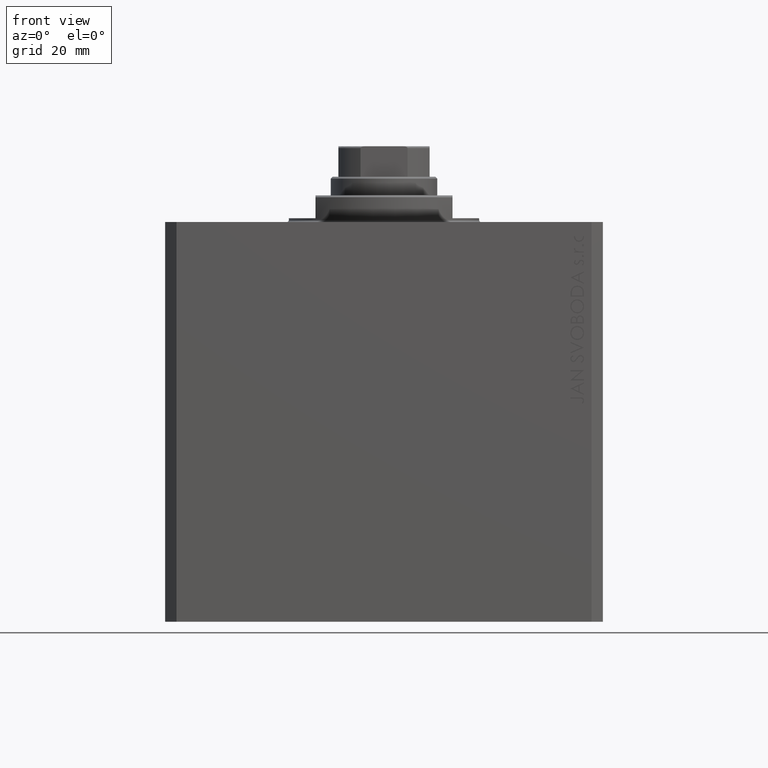
[diagram: clean part render]
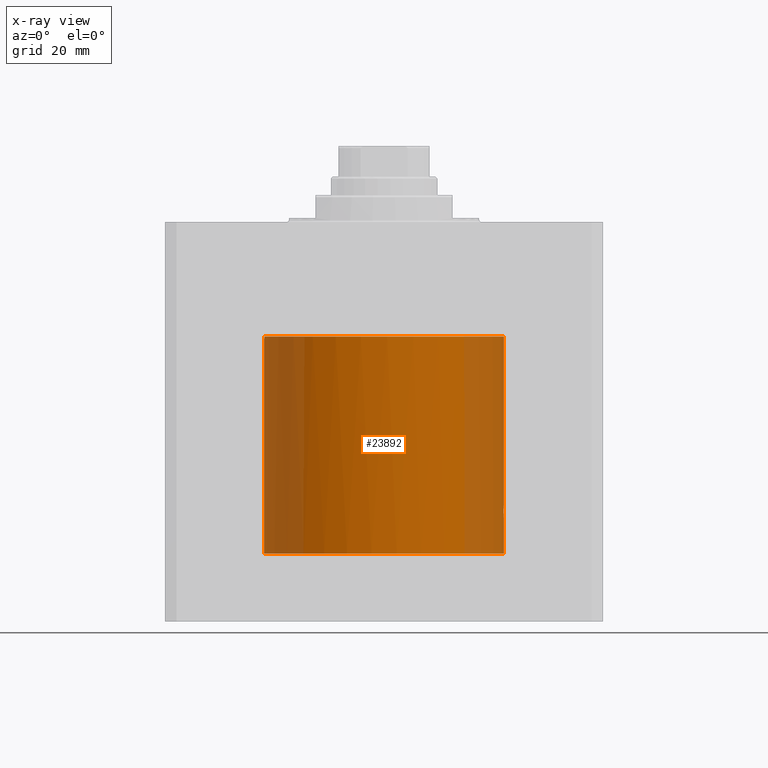
[diagram: x-ray — body ghosted, one internal face saturated and labeled with its STEP entity id]
A machine part, front view, then the same camera in x-ray: the body is ghosted and one INTERNAL B-rep face — a face not visible from any outside direction — is saturated and labeled: STEP entity #23892.
In plain terms, the highlighted cylindrical surface (partial cylindrical patch) has radius 31.5 mm, axis along (0, 0, 1).
Its self-contained STEP definition (entity closure, byte-faithful):
#1382 = CARTESIAN_POINT ( 'NONE',  ( 31.50000000000000000, 0.000000000000000000, -87.10000000000000853 ) ) ;
#3136 = CARTESIAN_POINT ( 'NONE',  ( -31.45568311132346295, -1.670329308848988559, -30.10000000000000142 ) ) ;
#3246 = CARTESIAN_POINT ( 'NONE',  ( 31.48773138987390752, -0.8872616597623499413, -77.79713993556131868 ) ) ;
#3460 = CARTESIAN_POINT ( 'NONE',  ( 31.47236300924845764, -1.322453193766294888, -77.50602960223193350 ) ) ;
#3842 = VERTEX_POINT ( 'NONE', #36670 ) ;
#4163 = VERTEX_POINT ( 'NONE', #22631 ) ;
#5920 = CARTESIAN_POINT ( 'NONE',  ( 31.50000000000000000, 0.000000000000000000, -87.10000000000000853 ) ) ;
#5970 = CARTESIAN_POINT ( 'NONE',  ( 31.46407444263389053, -1.506829553733667337, -77.32154164084835202 ) ) ;
#6106 = CARTESIAN_POINT ( 'NONE',  ( -31.50000000000000000, 3.857637417314161900E-15, -87.10000000000000853 ) ) ;
#6401 = CARTESIAN_POINT ( 'NONE',  ( 31.45220500162105282, -1.736105959509581131, -77.00148586720197841 ) ) ;
#7422 = DIRECTION ( 'NONE',  ( 1.000000000000000000, 0.000000000000000000, 0.000000000000000000 ) ) ;
#7527 = CARTESIAN_POINT ( 'NONE',  ( -31.50000000000000000, 3.857542963677526976E-15, -30.99999999999999645 ) ) ;
#8191 = CARTESIAN_POINT ( 'NONE',  ( -31.49867665059925059, -0.3296835877876423959, -30.97945265407803817 ) ) ;
#8662 = CIRCLE ( 'NONE', #24508, 31.50000000000000000 ) ;
#8716 = CARTESIAN_POINT ( 'NONE',  ( 31.47654718428505305, -1.229266569362845063, -74.40094912261049842 ) ) ;
#9359 = CARTESIAN_POINT ( 'NONE',  ( 31.43644381923633446, -1.999999999999602318, -76.13191476749157971 ) ) ;
#10392 = DIRECTION ( 'NONE',  ( -0.000000000000000000, -0.000000000000000000, 1.000000000000000000 ) ) ;
#10689 = CARTESIAN_POINT ( 'NONE',  ( 31.50000000000000000, 2.115822464172388752E-15, -78.00000000000000000 ) ) ;
#10899 = CARTESIAN_POINT ( 'NONE',  ( -31.47627458383467314, -1.228422599595581310, -30.58690868017701447 ) ) ;
#11136 = CARTESIAN_POINT ( 'NONE',  ( -31.45568311132346295, -1.670329308848988559, -30.10000000000000142 ) ) ;
#11431 = AXIS2_PLACEMENT_3D ( 'NONE', #13647, #38473, #35324 ) ;
#11503 = EDGE_CURVE ( 'NONE', #13937, #13096, #32296, .T. ) ;
#11650 = CARTESIAN_POINT ( 'NONE',  ( 31.45222028857342522, -1.735837506356491033, -74.99801201165938380 ) ) ;
#11775 = B_SPLINE_CURVE_WITH_KNOTS ( 'NONE', 3,
 ( #7527, #17673, #8191, #38881, #32126, #28078, #10899, #18346, #39101, #11136 ),
 .UNSPECIFIED., .F., .F.,
 ( 4, 2, 2, 2, 4 ),
 ( 0.001968471068080991215, 0.002460037929978817033, 0.002951604791876643284, 0.003443171653774469102, 0.003934738515672294920 ),
 .UNSPECIFIED. ) ;
#12099 = CARTESIAN_POINT ( 'NONE',  ( 31.44044773446764296, -1.936206353227569288, -75.48220621295804733 ) ) ;
#12318 = CARTESIAN_POINT ( 'NONE',  ( 31.49655533253666206, -0.5244229631002979009, -74.05246119243457770 ) ) ;
#13096 = VERTEX_POINT ( 'NONE', #10689 ) ;
#13391 = CARTESIAN_POINT ( 'NONE',  ( 31.50000000000000000, 2.115822464172388752E-15, -78.00000000000000000 ) ) ;
#13647 = CARTESIAN_POINT ( 'NONE',  ( 0.000000000000000000, 0.000000000000000000, -87.10000000000000853 ) ) ;
#13937 = VERTEX_POINT ( 'NONE', #5920 ) ;
#14160 = EDGE_CURVE ( 'NONE', #15183, #4163, #27567, .T. ) ;
#15183 = VERTEX_POINT ( 'NONE', #40824 ) ;
#15272 = CARTESIAN_POINT ( 'NONE',  ( 31.43644381923633446, -1.999999999999602318, -75.86794965735502672 ) ) ;
#15497 = CARTESIAN_POINT ( 'NONE',  ( 31.44282756203102380, -1.897662384614844600, -75.35498306075693620 ) ) ;
#15793 = CIRCLE ( 'NONE', #34490, 31.50000000000000000 ) ;
#16352 = CARTESIAN_POINT ( 'NONE',  ( 31.49999999999999289, -0.2641644753935982193, -77.99999999999994316 ) ) ;
#16823 = EDGE_LOOP ( 'NONE', ( #39652, #21278, #21855, #35050, #21959, #40892, #40364, #37367 ) ) ;
#17477 = CYLINDRICAL_SURFACE ( 'NONE', #11431, 31.50000000000000000 ) ;
#17673 = CARTESIAN_POINT ( 'NONE',  ( -31.49999999999999289, -0.1655884372801706417, -30.99999999999998579 ) ) ;
#18346 = CARTESIAN_POINT ( 'NONE',  ( -31.46581512805850167, -1.472196347977704045, -30.36379586281064036 ) ) ;
#18641 = CARTESIAN_POINT ( 'NONE',  ( 31.44872486828352720, -1.797284557493781243, -75.11290496716131315 ) ) ;
#19097 = CARTESIAN_POINT ( 'NONE',  ( 31.50000000000000711, -0.2611678296587112147, -74.00000000000005684 ) ) ;
#19725 = VECTOR ( 'NONE', #10392, 1000.000000000000000 ) ;
#20267 = EDGE_CURVE ( 'NONE', #29104, #13096, #22542, .T. ) ;
#21278 = ORIENTED_EDGE ( 'NONE', *, *, #43566, .T. ) ;
#21855 = ORIENTED_EDGE ( 'NONE', *, *, #32768, .T. ) ;
#21959 = ORIENTED_EDGE ( 'NONE', *, *, #14160, .F. ) ;
#22047 = CARTESIAN_POINT ( 'NONE',  ( 31.50000000000000000, -8.369814204394935255E-24, -74.00000000000000000 ) ) ;
#22542 = B_SPLINE_CURVE_WITH_KNOTS ( 'NONE', 3,
 ( #37539, #9359, #34380, #43866, #34162, #37322, #6401, #37112, #5970, #3460, #44291, #43654, #3246, #26755, #16352, #13391 ),
 .UNSPECIFIED., .F., .F.,
 ( 4, 2, 2, 2, 2, 2, 2, 4 ),
 ( 0.009382615871551869269, 0.009773230820200028493, 0.01016384576884818598, 0.01055446071749634521, 0.01094507566614450270, 0.01133569061479266192, 0.01172630556344082114, 0.01250753546073715521 ),
 .UNSPECIFIED. ) ;
#22631 = CARTESIAN_POINT ( 'NONE',  ( 31.50000000000000000, 0.000000000000000000, -30.10000000000000142 ) ) ;
#23892 = ADVANCED_FACE ( 'NONE', ( #34646 ), #17477, .F. ) ;
#24351 = DIRECTION ( 'NONE',  ( 0.000000000000000000, 0.000000000000000000, 1.000000000000000000 ) ) ;
#24385 = VERTEX_POINT ( 'NONE', #32630 ) ;
#24508 = AXIS2_PLACEMENT_3D ( 'NONE', #39089, #42249, #25120 ) ;
#25120 = DIRECTION ( 'NONE',  ( 1.000000000000000000, 0.000000000000000000, 0.000000000000000000 ) ) ;
#25891 = EDGE_CURVE ( 'NONE', #15183, #29104, #33984, .T. ) ;
#26341 = CARTESIAN_POINT ( 'NONE',  ( 31.43644381923632736, -1.999999999999602318, -76.00000000000000000 ) ) ;
#26755 = CARTESIAN_POINT ( 'NONE',  ( 31.49651623355825691, -0.5266027764248433218, -77.94691302305948000 ) ) ;
#27567 = LINE ( 'NONE', #41295, #19725 ) ;
#28078 = CARTESIAN_POINT ( 'NONE',  ( -31.48136485497054338, -1.092935033183745741, -30.68296119368725527 ) ) ;
#28460 = VECTOR ( 'NONE', #42646, 1000.000000000000000 ) ;
#29104 = VERTEX_POINT ( 'NONE', #42574 ) ;
#30254 = LINE ( 'NONE', #6106, #36010 ) ;
#32126 = CARTESIAN_POINT ( 'NONE',  ( -31.49005987750269497, -0.8043438504957262092, -30.83844943808289329 ) ) ;
#32296 = LINE ( 'NONE', #1382, #28460 ) ;
#32630 = CARTESIAN_POINT ( 'NONE',  ( -31.50000000000000000, 3.857542963677526976E-15, -30.99999999999999645 ) ) ;
#32645 = CARTESIAN_POINT ( 'NONE',  ( 31.45990289235030346, -1.590535423469516152, -74.78044727709638551 ) ) ;
#32768 = EDGE_CURVE ( 'NONE', #24385, #33177, #11775, .T. ) ;
#33177 = VERTEX_POINT ( 'NONE', #3136 ) ;
#33984 = B_SPLINE_CURVE_WITH_KNOTS ( 'NONE', 3,
 ( #22047, #19097, #12318, #36025, #8716, #43443, #32645, #11650, #18641, #15497, #12099, #42776, #15272, #26341 ),
 .UNSPECIFIED., .F., .F.,
 ( 4, 2, 2, 2, 2, 2, 4 ),
 ( 0.006254484652153861554, 0.007036517457003363916, 0.007818550261852866279, 0.008209566664277617026, 0.008600583066702367774, 0.008991599469127118521, 0.009382615871551869269 ),
 .UNSPECIFIED. ) ;
#34162 = CARTESIAN_POINT ( 'NONE',  ( 31.44281458444440247, -1.897877411374703005, -76.64440220180918573 ) ) ;
#34380 = CARTESIAN_POINT ( 'NONE',  ( 31.43727763971489253, -1.987013243169728938, -76.26217678819566004 ) ) ;
#34490 = AXIS2_PLACEMENT_3D ( 'NONE', #34505, #24351, #7422 ) ;
#34505 = CARTESIAN_POINT ( 'NONE',  ( 0.000000000000000000, 0.000000000000000000, -30.10000000000000142 ) ) ;
#34646 = FACE_OUTER_BOUND ( 'NONE', #16823, .T. ) ;
#35050 = ORIENTED_EDGE ( 'NONE', *, *, #37176, .T. ) ;
#35324 = DIRECTION ( 'NONE',  ( 1.000000000000000000, 0.000000000000000000, 0.000000000000000000 ) ) ;
#36010 = VECTOR ( 'NONE', #36368, 1000.000000000000000 ) ;
#36025 = CARTESIAN_POINT ( 'NONE',  ( 31.48485268472537513, -1.006016242866561550, -74.25189869564472644 ) ) ;
#36368 = DIRECTION ( 'NONE',  ( -0.000000000000000000, -0.000000000000000000, 1.000000000000000000 ) ) ;
#36670 = CARTESIAN_POINT ( 'NONE',  ( -31.50000000000000000, 3.857637417314161900E-15, -87.10000000000000853 ) ) ;
#37112 = CARTESIAN_POINT ( 'NONE',  ( 31.45986829311679500, -1.591210340082438002, -77.21864166122153961 ) ) ;
#37176 = EDGE_CURVE ( 'NONE', #33177, #4163, #15793, .T. ) ;
#37322 = CARTESIAN_POINT ( 'NONE',  ( 31.44871262113420229, -1.797498854984184602, -76.88667397200633502 ) ) ;
#37367 = ORIENTED_EDGE ( 'NONE', *, *, #11503, .F. ) ;
#37539 = CARTESIAN_POINT ( 'NONE',  ( 31.43644381923632736, -1.999999999999602318, -76.00000000000000000 ) ) ;
#38473 = DIRECTION ( 'NONE',  ( -0.000000000000000000, -0.000000000000000000, 1.000000000000000000 ) ) ;
#38881 = CARTESIAN_POINT ( 'NONE',  ( -31.49373816518792779, -0.6479030711830476852, -30.89924871676793572 ) ) ;
#39089 = CARTESIAN_POINT ( 'NONE',  ( 0.000000000000000000, 0.000000000000000000, -87.10000000000000853 ) ) ;
#39101 = CARTESIAN_POINT ( 'NONE',  ( -31.46053542408843029, -1.578950434106567435, -30.23875710244719528 ) ) ;
#39652 = ORIENTED_EDGE ( 'NONE', *, *, #41042, .F. ) ;
#40364 = ORIENTED_EDGE ( 'NONE', *, *, #20267, .T. ) ;
#40824 = CARTESIAN_POINT ( 'NONE',  ( 31.50000000000000000, -8.369814204394935255E-24, -74.00000000000000000 ) ) ;
#40892 = ORIENTED_EDGE ( 'NONE', *, *, #25891, .T. ) ;
#41042 = EDGE_CURVE ( 'NONE', #3842, #13937, #8662, .T. ) ;
#41295 = CARTESIAN_POINT ( 'NONE',  ( 31.50000000000000000, 0.000000000000000000, -87.10000000000000853 ) ) ;
#42249 = DIRECTION ( 'NONE',  ( 0.000000000000000000, 0.000000000000000000, 1.000000000000000000 ) ) ;
#42574 = CARTESIAN_POINT ( 'NONE',  ( 31.43644381923632736, -1.999999999999602318, -76.00000000000000000 ) ) ;
#42646 = DIRECTION ( 'NONE',  ( -0.000000000000000000, -0.000000000000000000, 1.000000000000000000 ) ) ;
#42776 = CARTESIAN_POINT ( 'NONE',  ( 31.43727534210788477, -1.987050037257513280, -75.73801221858082044 ) ) ;
#43443 = CARTESIAN_POINT ( 'NONE',  ( 31.46411164879456379, -1.506057066634440167, -74.67757528993223559 ) ) ;
#43566 = EDGE_CURVE ( 'NONE', #3842, #24385, #30254, .T. ) ;
#43654 = CARTESIAN_POINT ( 'NONE',  ( 31.48419274771890031, -1.003752801430392694, -77.73485257070035459 ) ) ;
#43866 = CARTESIAN_POINT ( 'NONE',  ( 31.44044572002255222, -1.936238609098684726, -76.51762761270639146 ) ) ;
#44291 = CARTESIAN_POINT ( 'NONE',  ( 31.47648100377266900, -1.221906821746971517, -77.58876582522816534 ) ) ;